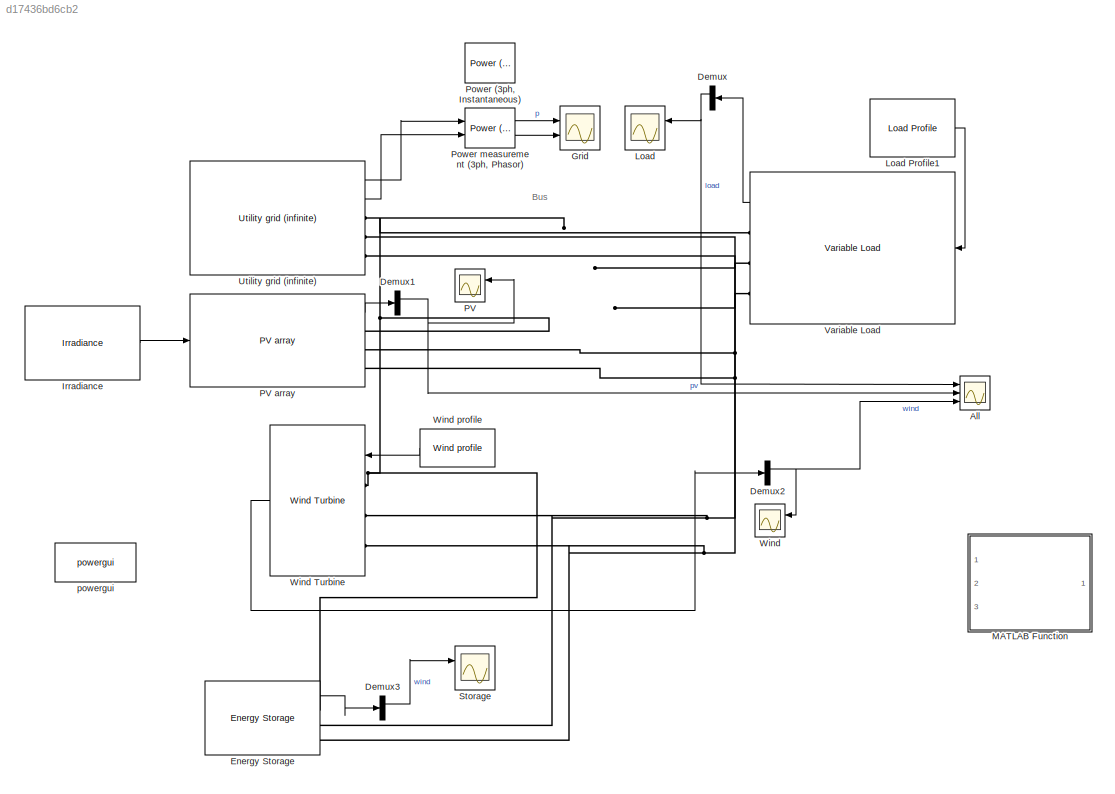
MODEL slx_d17436bd6cb2
KIND model
CONFIG AbsTol = auto
CONFIG EnableMultiTasking = off
CONFIG FixedStep = auto
CONFIG MaxStep = auto
CONFIG MinStep = auto
CONFIG RelTol = 1e-3
CONFIG SampleTimeConstraint = Unconstrained
CONFIG SolverName = VariableStepAuto
CONFIG StartTime = 0.0
CONFIG StopTime = 2628000
BLOCK [Scope] All
  Floating = off
  NumInputPorts = 3
  Ports = [3]
  ScopeSpecificationString = Simulink.scopes.TimeScopeBlockCfg('CurrentConfiguration', extmgr.ConfigurationSet(extmgr.Configuration('Core','General UI',true),extmgr.Configuration('Core','Source UI',true),extmgr.Configuration('Sources','WiredSimulink',true,'DataLogging',true),extmgr.Configuration('Visuals','Time Domain',true,'SerializedDisplays',{struct('MinYLimReal','-192439.09454','MaxYLimReal','487552.61038','YLabelReal',''...<+1470ch>
BLOCK [Demux] Demux
  Outputs = 2
  Ports = [1, 2]
BLOCK [Demux] Demux1
  Outputs = 2
  Ports = [1, 2]
BLOCK [Demux] Demux2
  Outputs = 2
  Ports = [1, 2]
BLOCK [Demux] Demux3
  Outputs = 2
  Ports = [1, 2]
BLOCK [Reference] Energy Storage  REF=ET3036TU_model_library_2020a_fix/Energy Storage
  Ports = [1, 1, 0, 0, 0, 0, 3]
  SourceBlock = ET3036TU_model_library_2020a_fix/Energy Storage
  SourceType = Grid-connected Energy Storage (PQ Model)
BLOCK [Scope] Grid
  Floating = off
  NumInputPorts = 2
  Ports = [2]
  ScopeSpecificationString = Simulink.scopes.TimeScopeBlockCfg('CurrentConfiguration', extmgr.ConfigurationSet(extmgr.Configuration('Core','General UI',true),extmgr.Configuration('Core','Source UI',true),extmgr.Configuration('Sources','WiredSimulink',true,'DataLogging',true,'DataLoggingMaxPoints','500','DataLoggingVariableName','ScopeData1'),extmgr.Configuration('Visuals','Time Domain',true,'SerializedDisplays',{struct('MinYL...<+1623ch>
BLOCK [Reference] Irradiance  REF=ET3036TU_model_library_2020a_fix/Irradiance
  NameLocation = top
  Ports = [0, 1]
  SourceBlock = ET3036TU_model_library_2020a_fix/Irradiance
  SourceType = Irradiance profile
BLOCK [Scope] Load
  Floating = off
  NumInputPorts = 2
  Ports = [2]
  ScopeSpecificationString = Simulink.scopes.TimeScopeBlockCfg('CurrentConfiguration', extmgr.ConfigurationSet(extmgr.Configuration('Core','General UI',true),extmgr.Configuration('Core','Source UI',true),extmgr.Configuration('Sources','WiredSimulink',true,'DataLogging',true,'DataLoggingMaxPoints','500','DataLoggingVariableName','ScopeData2'),extmgr.Configuration('Visuals','Time Domain',true,'SerializedDisplays',{struct('MinYL...<+1580ch>
BLOCK [Reference] Load Profile1  REF=ET3036TU_model_library_2020a_fix/Load Profile
  Ports = [0, 1]
  SourceBlock = ET3036TU_model_library_2020a_fix/Load Profile
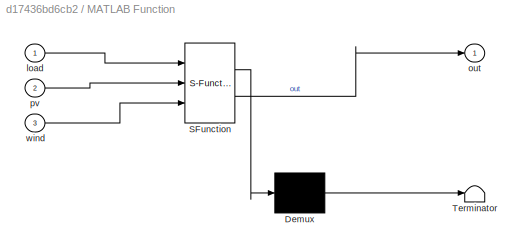
BLOCK [SubSystem] MATLAB Function
  AncestorBlock = ET3036TU_model_library_2020a_fix/MATLAB Function
  ErrorFcn = Stateflow.Translate.translate
  PermitHierarchicalResolution = ExplicitOnly
  Ports = [3, 1]
  RequestExecContextInheritance = off
  SFBlockType = MATLAB Function
  TreatAsAtomicUnit = on
BLOCK [Demux] MATLAB Function/ Demux 
  Outputs = 1
  Ports = [1, 1]
BLOCK [S-Function] MATLAB Function/ SFunction 
  EnableBusSupport = off
  FunctionName = sf_sfun
  PortCounts = [3 2]
  Ports = [3, 2]
  SFcnIsStateOwnerBlock = off
  SFunctionDeploymentMode = off
  Tag = Stateflow S-Function 2
BLOCK [Terminator] MATLAB Function/ Terminator 
BLOCK [Inport] MATLAB Function/load
BLOCK [Outport] MATLAB Function/out
  VectorParamsAs1DForOutWhenUnconnected = off
BLOCK [Inport] MATLAB Function/pv
  Port = 2
BLOCK [Inport] MATLAB Function/wind
  Port = 3
BLOCK [Scope] PV
  Floating = off
  NumInputPorts = 2
  Ports = [2]
  ScopeSpecificationString = Simulink.scopes.TimeScopeBlockCfg('CurrentConfiguration', extmgr.ConfigurationSet(extmgr.Configuration('Core','General UI',true),extmgr.Configuration('Core','Source UI',true),extmgr.Configuration('Sources','WiredSimulink',true,'DataLogging',true,'DataLoggingMaxPoints','500','DataLoggingVariableName','ScopeData3'),extmgr.Configuration('Visuals','Time Domain',true,'SerializedDisplays',{struct('MinYL...<+1568ch>
BLOCK [Reference] PV array   REF=ET3036TU_model_library_2020a_fix/PV array

  Ports = [1, 1, 0, 0, 0, 0, 3]
  SourceBlock = ET3036TU_model_library_2020a_fix/PV array
  SourceType = PV farm
BLOCK [Reference] Power (3ph, Instantaneous)  REF=powerlib_meascontrol/Measurements/Power
(3ph, Instantaneous)
  Ports = [2, 2]
  SourceBlock = powerlib_meascontrol/Measurements/Power\n(3ph, Instantaneous)
  SourceProductBaseCode = PS
  SourceType = Power (3ph, Instantaneous)
BLOCK [Reference] Power measurement (3ph, Phasor)  REF=powerlib_meascontrol/Measurements/Power
(3ph, Phasor)
  Ports = [2, 2]
  SourceBlock = powerlib_meascontrol/Measurements/Power\n(3ph, Phasor)
  SourceProductBaseCode = PS
  SourceType = Power (3ph, Phasor)
BLOCK [Scope] Storage
  Floating = off
  NumInputPorts = 2
  Ports = [2]
  ScopeSpecificationString = Simulink.scopes.TimeScopeBlockCfg('CurrentConfiguration', extmgr.ConfigurationSet(extmgr.Configuration('Core','General UI',true),extmgr.Configuration('Core','Source UI',true),extmgr.Configuration('Sources','WiredSimulink',true,'DataLogging',true,'DataLoggingMaxPoints','500','DataLoggingVariableName','ScopeData1'),extmgr.Configuration('Visuals','Time Domain',true,'SerializedDisplays',{struct('MinYL...<+1623ch>
BLOCK [Reference] Utility grid (infinite)  REF=ET3036TU_model_library_2020a_fix/Utility grid (infinite)
  Ports = [0, 2, 0, 0, 0, 0, 3]
  SourceBlock = ET3036TU_model_library_2020a_fix/Utility grid (infinite)
  SourceType = Utility Distribution Substation
BLOCK [Reference] Variable Load  REF=ET3036TU_model_library_2020a_fix/Variable Load
  Ports = [1, 1, 0, 0, 0, 0, 3]
  SourceBlock = ET3036TU_model_library_2020a_fix/Variable Load
  SourceType = Variable Load (PQ Model)
BLOCK [Scope] Wind
  Floating = off
  NumInputPorts = 2
  Ports = [2]
  ScopeSpecificationString = Simulink.scopes.TimeScopeBlockCfg('CurrentConfiguration', extmgr.ConfigurationSet(extmgr.Configuration('Core','General UI',true),extmgr.Configuration('Core','Source UI',true),extmgr.Configuration('Sources','WiredSimulink',true,'DataLogging',true,'DataLoggingMaxPoints','500','DataLoggingVariableName','ScopeData4'),extmgr.Configuration('Visuals','Time Domain',true,'SerializedDisplays',{struct('MinYL...<+1566ch>
BLOCK [Reference] Wind Turbine   REF=ET3036TU_model_library_2020a_fix/Wind Turbine



  Ports = [1, 1, 0, 0, 0, 3]
  SourceBlock = ET3036TU_model_library_2020a_fix/Wind Turbine
BLOCK [Reference] Wind profile  REF=ET3036TU_model_library_2020a_fix/Wind profile
  Ports = [0, 1]
  SourceBlock = ET3036TU_model_library_2020a_fix/Wind profile
  SourceType = Wind profile
BLOCK [Reference] powergui  REF=powerlib/powergui
  Ports = []
  Priority = 1
  SourceBlock = powerlib/powergui
  SourceProductBaseCode = PS
  SourceType = PSB option menu block
ANNOTATION (root): Bus
NET Demux1:1 -> All:2, PV:1
NET Demux2:1 -> All:3, Wind:1
LINE Demux3:1 -> Storage:1
NET Demux:1 -> All:1, Load:1
LINE Energy Storage:1 -> Demux3:1
LINE Irradiance:1 -> PV array :1
LINE Load Profile1:1 -> Variable Load:1
LINE PV array :1 -> Demux1:1
LINE Power measurement (3ph, Phasor):1 -> Grid:1
LINE Power measurement (3ph, Phasor):2 -> Grid:2
LINE Utility grid (infinite):1 -> Power measurement (3ph, Phasor):1
LINE Utility grid (infinite):2 -> Power measurement (3ph, Phasor):2
LINE Variable Load:1 -> Demux:1
LINE Wind Turbine :1 -> Demux2:1
LINE Wind profile:1 -> Wind Turbine :1
PNET net1: Energy Storage:RConn1 -- PV array :RConn1 -- Utility grid (infinite):RConn1 -- Variable Load:RConn1 -- Wind Turbine :LConn1
PNET net2: Energy Storage:RConn2 -- PV array :RConn2 -- Utility grid (infinite):RConn2 -- Variable Load:RConn2 -- Wind Turbine :LConn2
PNET net3: Energy Storage:RConn3 -- PV array :RConn3 -- Utility grid (infinite):RConn3 -- Variable Load:RConn3 -- Wind Turbine :LConn3
note: NET lines group one-source signal fan-out (src -> all destinations, sorted); 1:1 wires keep LINE; PNET lines group multi-terminal physical nets as a canonical sorted terminal list (undirected conserving connections); 2-terminal nets keep the pairwise PLINE form
CHART MATLAB Function states=1 transitions=1
  STATE_LABEL 'eML_blk_kernel()'
  STATE_LABEL 'SCRIPT:\nfunction out = Controller(load, pv, wind)\n    return (pv + wind - load;\n    % load - the load demand (W)\n    % pv   - the solar generated power (W)\n    % wind - the wind generated power (W)\n    % negative if discharge, positive otherwise\nend\n\n \n\n'
CHART  states=0 transitions=0
